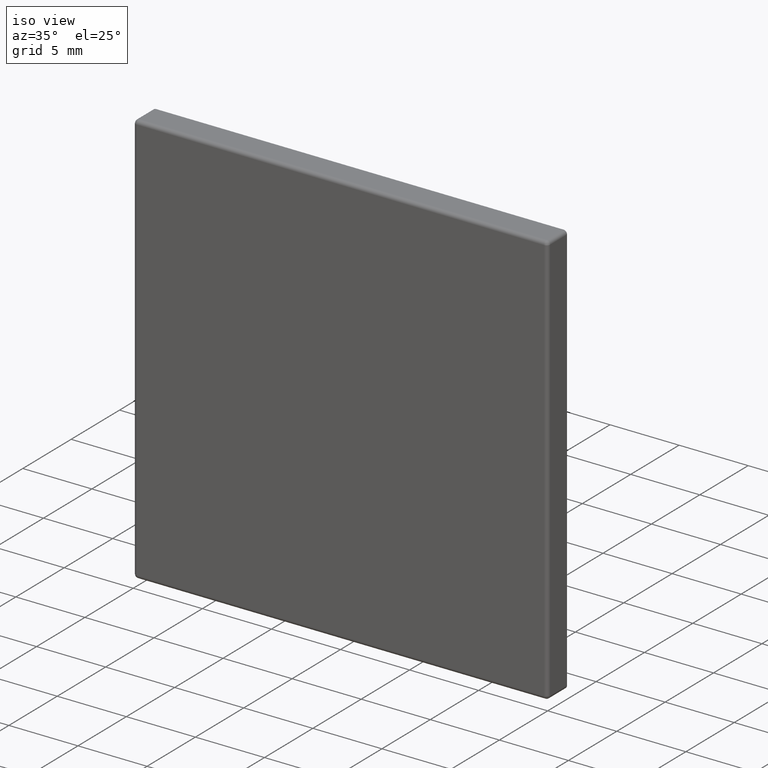
[diagram: clean part render]
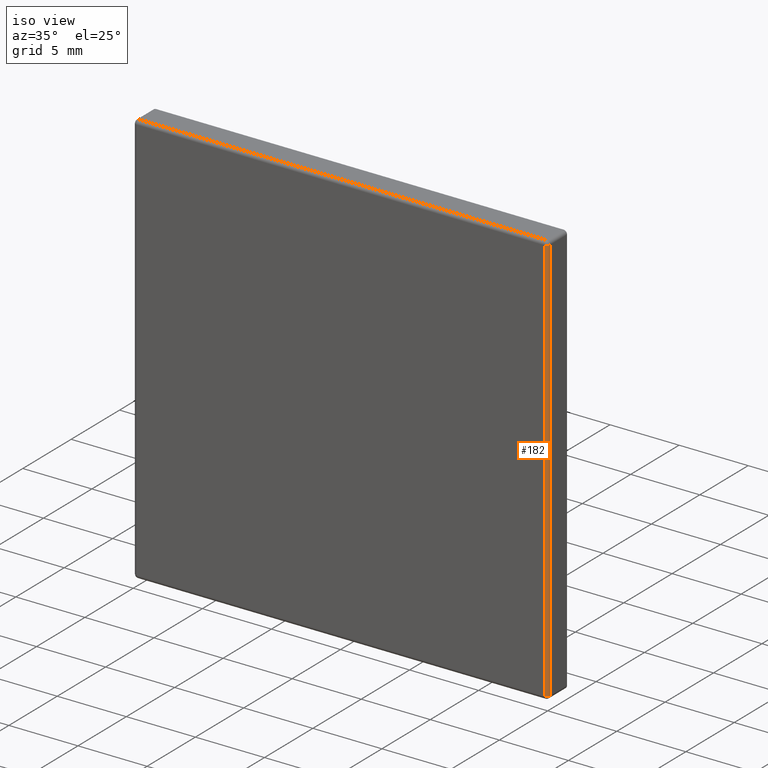
[diagram: same view with one face highlighted and labeled with its STEP entity id]
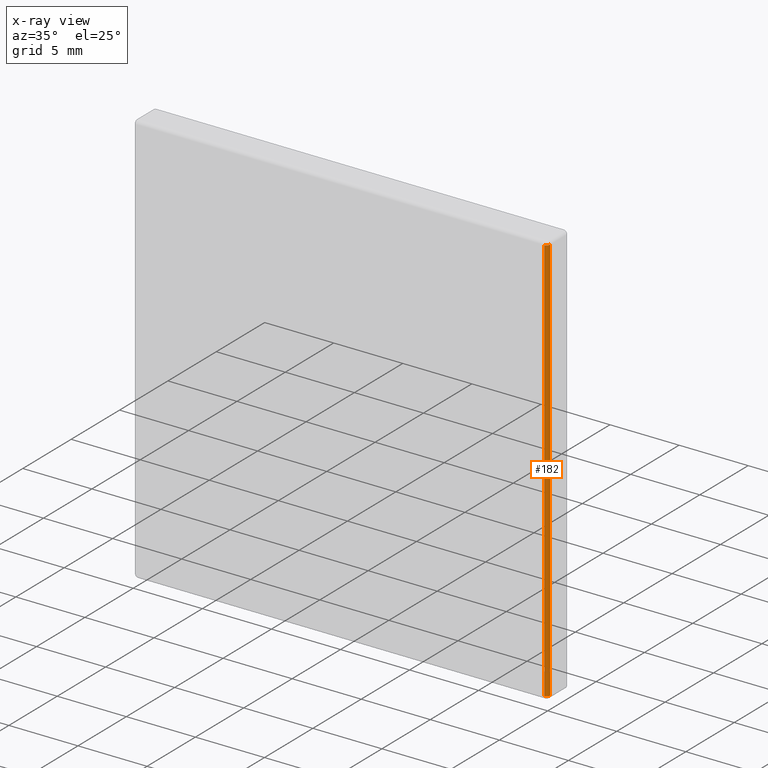
[diagram: x-ray of the same camera — body ghosted, the highlighted face saturated]
A machine part, iso view. The second image highlights one B-rep face of the part: STEP entity #182.
The next image is the same camera in x-ray: the body ghosted, the highlighted face saturated — about 0% of this face is hidden behind the body in this view.
In plain terms, the highlighted cylindrical surface (edge-blend (fillet) strip) has radius 0.25 mm, axis along (0, -0, -1).
Its self-contained STEP definition (entity closure, byte-faithful):
#36 = CARTESIAN_POINT ( 'NONE',  ( 14.75000000000000200, 0.2500000000000000000, 14.75000000000000000 ) ) ;
#37 = DIRECTION ( 'NONE',  ( -0.0000000000000000000, -0.0000000000000000000, 1.000000000000000000 ) ) ;
#38 = DIRECTION ( 'NONE',  ( -1.000000000000000000, -8.673617379884027600E-016, 6.938893903907222100E-015 ) ) ;
#40 = CARTESIAN_POINT ( 'NONE',  ( 15.00000000000000000, 0.2499999999999999400, -14.74999999998718000 ) ) ;
#42 = CARTESIAN_POINT ( 'NONE',  ( 14.75000000004808600, -1.084202172485504400E-016, 14.75000000004808600 ) ) ;
#54 = CARTESIAN_POINT ( 'NONE',  ( 14.75000000003606400, -1.084202172485504400E-016, -14.75000000004808800 ) ) ;
#76 = CARTESIAN_POINT ( 'NONE',  ( 15.00000000000000000, 0.2499999999743620900, 14.75000000000000000 ) ) ;
#177 = EDGE_CURVE ( 'NONE', #482, #453, #654, .T. ) ;
#178 = EDGE_CURVE ( 'NONE', #445, #482, #658, .T. ) ;
#182 = ADVANCED_FACE ( 'NONE', ( #665 ), #666, .T. ) ;
#252 = ORIENTED_EDGE ( 'NONE', *, *, #178, .F. ) ;
#262 = EDGE_LOOP ( 'NONE', ( #583, #581, #582, #252 ) ) ;
#408 = EDGE_CURVE ( 'NONE', #445, #519, #723, .T. ) ;
#441 = EDGE_CURVE ( 'NONE', #453, #519, #659, .T. ) ;
#445 = VERTEX_POINT ( 'NONE', #40 ) ;
#453 = VERTEX_POINT ( 'NONE', #42 ) ;
#482 = VERTEX_POINT ( 'NONE', #54 ) ;
#519 = VERTEX_POINT ( 'NONE', #76 ) ;
#522 = DIRECTION ( 'NONE',  ( -0.0000000000000000000, -0.0000000000000000000, 1.000000000000000000 ) ) ;
#537 = AXIS2_PLACEMENT_3D ( 'NONE', #36, #37, #38 ) ;
#551 = AXIS2_PLACEMENT_3D ( 'NONE', #775, #776, #777 ) ;
#554 = AXIS2_PLACEMENT_3D ( 'NONE', #786, #787, #788 ) ;
#581 = ORIENTED_EDGE ( 'NONE', *, *, #441, .F. ) ;
#582 = ORIENTED_EDGE ( 'NONE', *, *, #177, .F. ) ;
#583 = ORIENTED_EDGE ( 'NONE', *, *, #408, .T. ) ;
#654 = LINE ( 'NONE', #926, #655 ) ;
#655 = VECTOR ( 'NONE', #522, 1000.000000000000000 ) ;
#658 = CIRCLE ( 'NONE', #551, 0.2500000000000002200 ) ;
#659 = CIRCLE ( 'NONE', #537, 0.2500000000000002200 ) ;
#665 = FACE_OUTER_BOUND ( 'NONE', #262, .T. ) ;
#666 = CYLINDRICAL_SURFACE ( 'NONE', #554, 0.2500000000000002200 ) ;
#723 = LINE ( 'NONE', #882, #725 ) ;
#725 = VECTOR ( 'NONE', #883, 1000.000000000000000 ) ;
#775 = CARTESIAN_POINT ( 'NONE',  ( 14.75000000000000200, 0.2500000000000000000, -14.75000000000000200 ) ) ;
#776 = DIRECTION ( 'NONE',  ( 0.0000000000000000000, 0.0000000000000000000, -1.000000000000000000 ) ) ;
#777 = DIRECTION ( 'NONE',  ( -1.000000000000000000, 0.0000000000000000000, 0.0000000000000000000 ) ) ;
#786 = CARTESIAN_POINT ( 'NONE',  ( 14.75000000000000200, 0.2500000000000000000, 14.75000000000000200 ) ) ;
#787 = DIRECTION ( 'NONE',  ( 0.0000000000000000000, -3.469446951953612200E-015, -1.000000000000000000 ) ) ;
#788 = DIRECTION ( 'NONE',  ( 0.0000000000000000000, 1.000000000000000000, -6.938893903907222100E-015 ) ) ;
#882 = CARTESIAN_POINT ( 'NONE',  ( 15.00000000000000000, 0.2500000000000000000, 0.0000000000000000000 ) ) ;
#883 = DIRECTION ( 'NONE',  ( 0.0000000000000000000, 0.0000000000000000000, 1.000000000000000000 ) ) ;
#926 = CARTESIAN_POINT ( 'NONE',  ( 14.75000000009617400, 0.0000000000000000000, 0.0000000000000000000 ) ) ;